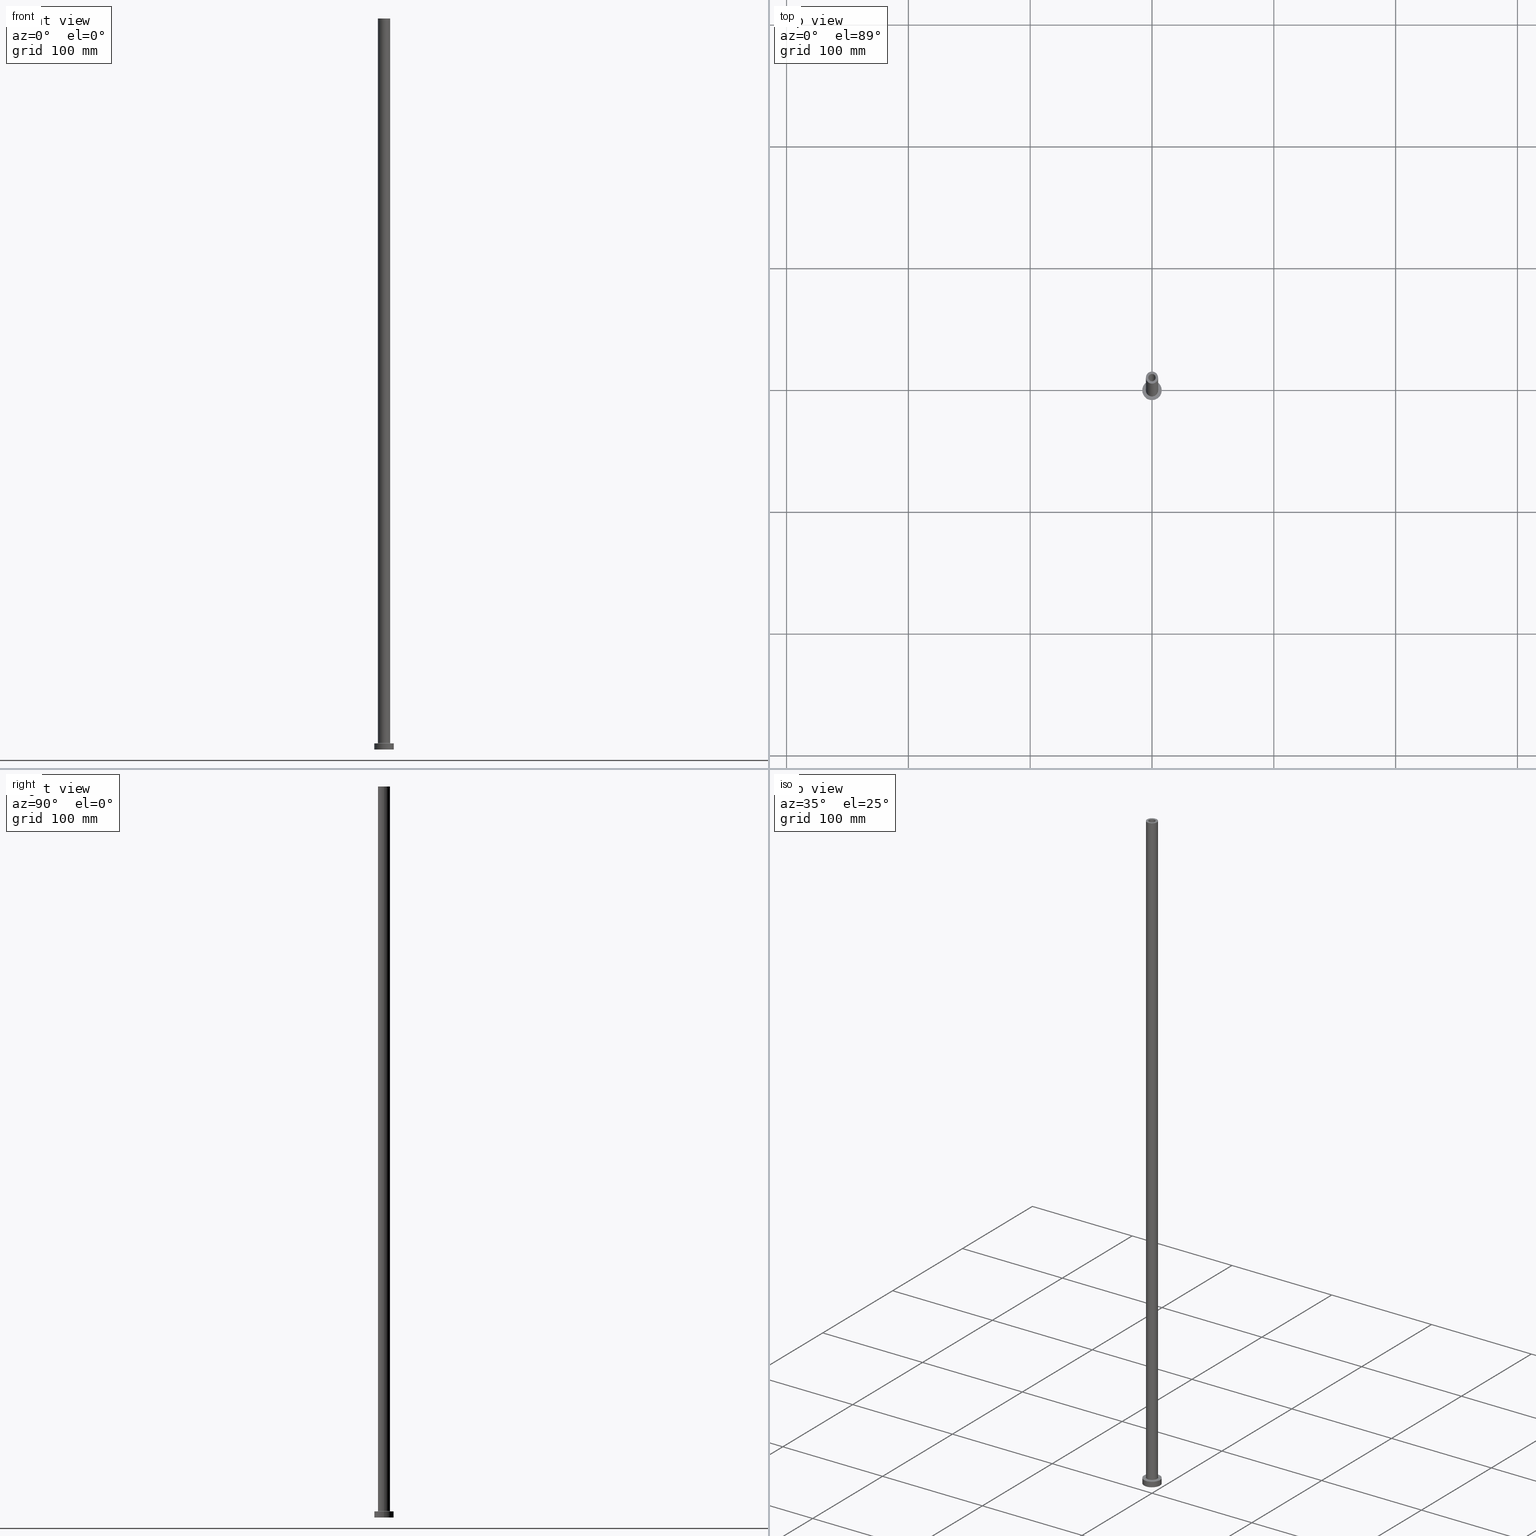
[diagram: canonical four-view strip — front | top / right | iso, engineering-drawing reading convention]
A machine part, canonical four-view strip (front | top / right | iso — engineering-drawing reading convention). The complete STEP part file that produces these views, byte-faithful:
ISO-10303-21;
HEADER;
FILE_DESCRIPTION (( 'STEP AP203' ),
    '1' );
FILE_NAME ('afd4.STEP',
    '2023-02-13T15:29:36',
    ( '' ),
    ( '' ),
    'SwSTEP 2.0',
    'SolidWorks 2019',
    '' );
FILE_SCHEMA (( 'CONFIG_CONTROL_DESIGN' ));
ENDSEC;

DATA;
#1 = ORIENTED_EDGE ( 'NONE', *, *, #393, .F. ) ;
#2 = VECTOR ( 'NONE', #62, 1000.000000000000000 ) ;
#3 = DIRECTION ( 'NONE',  ( 0.000000000000000000, 0.000000000000000000, 1.000000000000000000 ) ) ;
#4 = ORIENTED_EDGE ( 'NONE', *, *, #460, .F. ) ;
#5 = DIRECTION ( 'NONE',  ( 0.000000000000000000, 0.000000000000000000, 1.000000000000000000 ) ) ;
#6 = VERTEX_POINT ( 'NONE', #116 ) ;
#7 =( NAMED_UNIT ( * ) SI_UNIT ( $, .STERADIAN. ) SOLID_ANGLE_UNIT ( ) );
#8 = ORIENTED_EDGE ( 'NONE', *, *, #35, .T. ) ;
#9 = APPROVAL_PERSON_ORGANIZATION ( #341, #94, #408 ) ;
#10 = CIRCLE ( 'NONE', #97, 8.000000000000000000 ) ;
#11 = CARTESIAN_POINT ( 'NONE',  ( 3.000000000000000444, 3.673940397442060361E-16, 600.0000000000000000 ) ) ;
#12 = CARTESIAN_POINT ( 'NONE',  ( -8.000000000000000000, 0.000000000000000000, 0.000000000000000000 ) ) ;
#13 = COORDINATED_UNIVERSAL_TIME_OFFSET ( 1, 0, .AHEAD. ) ;
#14 = DIRECTION ( 'NONE',  ( 0.000000000000000000, -1.000000000000000000, 0.000000000000000000 ) ) ;
#15 = CYLINDRICAL_SURFACE ( 'NONE', #328, 8.000000000000000000 ) ;
#16 = AXIS2_PLACEMENT_3D ( 'NONE', #27, #250, #277 ) ;
#17 = CIRCLE ( 'NONE', #225, 3.150000000000000355 ) ;
#18 = CARTESIAN_POINT ( 'NONE',  ( -3.000000000000000444, 0.000000000000000000, 554.9999999999998863 ) ) ;
#19 = CALENDAR_DATE ( 2023, 13, 2 ) ;
#20 = ADVANCED_FACE ( 'NONE', ( #404 ), #358, .F. ) ;
#21 = CARTESIAN_POINT ( 'NONE',  ( -8.000000000000000000, 0.000000000000000000, 5.000000000000000000 ) ) ;
#22 = PERSON_AND_ORGANIZATION_ROLE ( 'creator' ) ;
#23 = DIRECTION ( 'NONE',  ( -1.000000000000000000, 0.000000000000000000, 0.000000000000000000 ) ) ;
#24 = CC_DESIGN_SECURITY_CLASSIFICATION ( #379, ( #352 ) ) ;
#25 = CIRCLE ( 'NONE', #146, 5.500000000000000000 ) ;
#26 = CARTESIAN_POINT ( 'NONE',  ( 3.000000000000000444, 3.673940397442060361E-16, 554.9999999999998863 ) ) ;
#27 = CARTESIAN_POINT ( 'NONE',  ( 0.000000000000000000, 0.000000000000000000, 0.000000000000000000 ) ) ;
#28 = EDGE_CURVE ( 'NONE', #380, #249, #313, .T. ) ;
#29 = FACE_OUTER_BOUND ( 'NONE', #252, .T. ) ;
#30 = ORIENTED_EDGE ( 'NONE', *, *, #368, .F. ) ;
#31 = FACE_OUTER_BOUND ( 'NONE', #176, .T. ) ;
#32 = CIRCLE ( 'NONE', #61, 5.500000000000000000 ) ;
#33 = EDGE_LOOP ( 'NONE', ( #294, #263 ) ) ;
#34 = DIRECTION ( 'NONE',  ( 0.000000000000000000, 0.000000000000000000, -1.000000000000000000 ) ) ;
#35 = EDGE_CURVE ( 'NONE', #114, #390, #10, .T. ) ;
#36 = ORIENTED_EDGE ( 'NONE', *, *, #113, .F. ) ;
#37 = APPLICATION_PROTOCOL_DEFINITION ( 'international standard', 'config_control_design', 1994, #320 ) ;
#38 = LINE ( 'NONE', #289, #133 ) ;
#39 = ORIENTED_EDGE ( 'NONE', *, *, #304, .T. ) ;
#40 = CIRCLE ( 'NONE', #327, 3.150000000000000355 ) ;
#41 = CC_DESIGN_DATE_AND_TIME_ASSIGNMENT ( #309, #232, ( #379 ) ) ;
#42 = DIRECTION ( 'NONE',  ( -0.000000000000000000, -0.000000000000000000, -1.000000000000000000 ) ) ;
#43 = DIRECTION ( 'NONE',  ( 0.000000000000000000, 0.000000000000000000, -1.000000000000000000 ) ) ;
#44 = DIRECTION ( 'NONE',  ( -1.000000000000000000, 0.000000000000000000, 0.000000000000000000 ) ) ;
#45 = VERTEX_POINT ( 'NONE', #12 ) ;
#46 = MECHANICAL_CONTEXT ( 'NONE', #308, 'mechanical' ) ;
#47 = VERTEX_POINT ( 'NONE', #158 ) ;
#48 = AXIS2_PLACEMENT_3D ( 'NONE', #448, #416, #53 ) ;
#49 = VECTOR ( 'NONE', #334, 1000.000000000000000 ) ;
#50 = ORIENTED_EDGE ( 'NONE', *, *, #447, .T. ) ;
#51 = ADVANCED_FACE ( 'NONE', ( #298 ), #15, .T. ) ;
#52 = CARTESIAN_POINT ( 'NONE',  ( -8.000000000000000000, 0.000000000000000000, 5.000000000000000000 ) ) ;
#53 = DIRECTION ( 'NONE',  ( 1.000000000000000000, 0.000000000000000000, 0.000000000000000000 ) ) ;
#54 = EDGE_CURVE ( 'NONE', #390, #114, #282, .T. ) ;
#55 = APPROVAL_ROLE ( '' ) ;
#56 = DIRECTION ( 'NONE',  ( 1.000000000000000000, 0.000000000000000000, 0.000000000000000000 ) ) ;
#57 = DIRECTION ( 'NONE',  ( -0.000000000000000000, -0.000000000000000000, -1.000000000000000000 ) ) ;
#58 = CARTESIAN_POINT ( 'NONE',  ( 0.000000000000000000, 0.000000000000000000, 0.000000000000000000 ) ) ;
#59 = ADVANCED_BREP_SHAPE_REPRESENTATION ( 'afd4', ( #391, #275 ), #329 ) ;
#60 = AXIS2_PLACEMENT_3D ( 'NONE', #272, #14, #301 ) ;
#61 = AXIS2_PLACEMENT_3D ( 'NONE', #381, #65, #349 ) ;
#62 = DIRECTION ( 'NONE',  ( 0.000000000000000000, 0.000000000000000000, -1.000000000000000000 ) ) ;
#63 = AXIS2_PLACEMENT_3D ( 'NONE', #345, #442, #134 ) ;
#64 = EDGE_CURVE ( 'NONE', #360, #154, #81, .T. ) ;
#65 = DIRECTION ( 'NONE',  ( -0.000000000000000000, -0.000000000000000000, -1.000000000000000000 ) ) ;
#66 = ORIENTED_EDGE ( 'NONE', *, *, #415, .T. ) ;
#67 = CARTESIAN_POINT ( 'NONE',  ( 0.000000000000000000, 0.000000000000000000, 600.0000000000000000 ) ) ;
#68 = ORIENTED_EDGE ( 'NONE', *, *, #361, .T. ) ;
#69 = EDGE_CURVE ( 'NONE', #249, #380, #321, .T. ) ;
#70 = DIRECTION ( 'NONE',  ( 1.000000000000000000, 0.000000000000000000, 0.000000000000000000 ) ) ;
#71 = ORIENTED_EDGE ( 'NONE', *, *, #447, .F. ) ;
#72 = CARTESIAN_POINT ( 'NONE',  ( -3.000000000000000444, 0.000000000000000000, 600.0000000000000000 ) ) ;
#73 = ORIENTED_EDGE ( 'NONE', *, *, #237, .F. ) ;
#74 = PERSON_AND_ORGANIZATION ( #179, #242 ) ;
#75 = VERTEX_POINT ( 'NONE', #273 ) ;
#76 = CC_DESIGN_PERSON_AND_ORGANIZATION_ASSIGNMENT ( #244, #306, ( #352 ) ) ;
#77 =( LENGTH_UNIT ( ) NAMED_UNIT ( * ) SI_UNIT ( .MILLI., .METRE. ) );
#78 = AXIS2_PLACEMENT_3D ( 'NONE', #270, #338, #209 ) ;
#79 = ORIENTED_EDGE ( 'NONE', *, *, #69, .T. ) ;
#80 = CIRCLE ( 'NONE', #281, 3.000000000000000444 ) ;
#81 = CIRCLE ( 'NONE', #399, 3.000000000000000444 ) ;
#82 = DIRECTION ( 'NONE',  ( 0.000000000000000000, 0.000000000000000000, -1.000000000000000000 ) ) ;
#83 = ORIENTED_EDGE ( 'NONE', *, *, #436, .F. ) ;
#84 = LINE ( 'NONE', #395, #49 ) ;
#85 = CARTESIAN_POINT ( 'NONE',  ( 0.000000000000000000, 0.000000000000000000, 5.000000000000000000 ) ) ;
#86 = ADVANCED_FACE ( 'NONE', ( #414 ), #206, .T. ) ;
#87 = ORIENTED_EDGE ( 'NONE', *, *, #192, .T. ) ;
#88 = CIRCLE ( 'NONE', #60, 0.5000000000000004441 ) ;
#89 = AXIS2_PLACEMENT_3D ( 'NONE', #91, #409, #236 ) ;
#90 = APPROVAL_STATUS ( 'not_yet_approved' ) ;
#91 = CARTESIAN_POINT ( 'NONE',  ( 0.000000000000000000, 0.000000000000000000, 5.000000000000000000 ) ) ;
#92 = PERSON_AND_ORGANIZATION_ROLE ( 'classification_officer' ) ;
#93 = CARTESIAN_POINT ( 'NONE',  ( 0.000000000000000000, 0.000000000000000000, 600.0000000000000000 ) ) ;
#94 = APPROVAL ( #90, 'NEUR�EN�' ) ;
#95 = PERSON_AND_ORGANIZATION ( #179, #242 ) ;
#96 = DIRECTION ( 'NONE',  ( -0.000000000000000000, -0.000000000000000000, -1.000000000000000000 ) ) ;
#97 = AXIS2_PLACEMENT_3D ( 'NONE', #85, #362, #196 ) ;
#98 = DIRECTION ( 'NONE',  ( -1.000000000000000000, 0.000000000000000000, 0.000000000000000000 ) ) ;
#99 = LINE ( 'NONE', #21, #330 ) ;
#100 = DIRECTION ( 'NONE',  ( -0.000000000000000000, -0.000000000000000000, -1.000000000000000000 ) ) ;
#101 = DIRECTION ( 'NONE',  ( 1.000000000000000000, 0.000000000000000000, -0.000000000000000000 ) ) ;
#102 = EDGE_LOOP ( 'NONE', ( #459, #68, #39, #36 ) ) ;
#103 = PRODUCT ( 'afd4', 'afd4', '', ( #46 ) ) ;
#104 = CARTESIAN_POINT ( 'NONE',  ( 0.000000000000000000, 0.000000000000000000, 554.9999999999998863 ) ) ;
#105 = ADVANCED_FACE ( 'NONE', ( #302 ), #406, .F. ) ;
#106 = CARTESIAN_POINT ( 'NONE',  ( 8.000000000000000000, 9.797174393178825657E-16, 5.000000000000000000 ) ) ;
#107 = DIRECTION ( 'NONE',  ( 0.000000000000000000, 0.000000000000000000, 1.000000000000000000 ) ) ;
#108 = LOCAL_TIME ( 16, 29, 36.00000000000000000, #197 ) ;
#109 = AXIS2_PLACEMENT_3D ( 'NONE', #119, #264, #403 ) ;
#110 = ORIENTED_EDGE ( 'NONE', *, *, #237, .T. ) ;
#111 = DIRECTION ( 'NONE',  ( 1.000000000000000000, 0.000000000000000000, 0.000000000000000000 ) ) ;
#112 = ORIENTED_EDGE ( 'NONE', *, *, #436, .T. ) ;
#113 = EDGE_CURVE ( 'NONE', #114, #45, #99, .T. ) ;
#114 = VERTEX_POINT ( 'NONE', #52 ) ;
#115 = DIRECTION ( 'NONE',  ( -0.000000000000000000, -0.000000000000000000, -1.000000000000000000 ) ) ;
#116 = CARTESIAN_POINT ( 'NONE',  ( -5.500000000000000000, 6.735557395310442023E-16, 4.999999999999975131 ) ) ;
#117 = AXIS2_PLACEMENT_3D ( 'NONE', #162, #446, #56 ) ;
#118 = CARTESIAN_POINT ( 'NONE',  ( 0.000000000000000000, 0.000000000000000000, 0.000000000000000000 ) ) ;
#119 = CARTESIAN_POINT ( 'NONE',  ( 0.000000000000000000, 0.000000000000000000, 5.499999999999949374 ) ) ;
#120 = ADVANCED_FACE ( 'NONE', ( #128 ), #319, .F. ) ;
#121 = FACE_BOUND ( 'NONE', #153, .T. ) ;
#122 = ORIENTED_EDGE ( 'NONE', *, *, #156, .F. ) ;
#123 = SHAPE_DEFINITION_REPRESENTATION ( #342, #59 ) ;
#124 = CARTESIAN_POINT ( 'NONE',  ( 5.000000000000000000, 6.123233995736766282E-16, 600.0000000000000000 ) ) ;
#125 = AXIS2_PLACEMENT_3D ( 'NONE', #93, #276, #369 ) ;
#126 = LOCAL_TIME ( 16, 29, 36.00000000000000000, #150 ) ;
#127 = APPROVAL ( #445, 'NEUR�EN�' ) ;
#128 = FACE_OUTER_BOUND ( 'NONE', #219, .T. ) ;
#129 = DATE_AND_TIME ( #271, #126 ) ;
#130 = FACE_OUTER_BOUND ( 'NONE', #288, .T. ) ;
#131 = COORDINATED_UNIVERSAL_TIME_OFFSET ( 1, 0, .AHEAD. ) ;
#132 = DIRECTION ( 'NONE',  ( 0.000000000000000000, 0.000000000000000000, -1.000000000000000000 ) ) ;
#133 = VECTOR ( 'NONE', #389, 1000.000000000000000 ) ;
#134 = DIRECTION ( 'NONE',  ( 1.000000000000000000, 0.000000000000000000, 0.000000000000000000 ) ) ;
#135 = CC_DESIGN_PERSON_AND_ORGANIZATION_ASSIGNMENT ( #95, #92, ( #379 ) ) ;
#136 = DIRECTION ( 'NONE',  ( -1.000000000000000000, 0.000000000000000000, 0.000000000000000000 ) ) ;
#137 = ORIENTED_EDGE ( 'NONE', *, *, #186, .T. ) ;
#138 = CARTESIAN_POINT ( 'NONE',  ( -3.150000000000000355, 0.000000000000000000, 0.000000000000000000 ) ) ;
#139 = CARTESIAN_POINT ( 'NONE',  ( 8.000000000000000000, 9.797174393178825657E-16, 5.000000000000000000 ) ) ;
#140 = EDGE_CURVE ( 'NONE', #425, #193, #339, .T. ) ;
#141 = ORIENTED_EDGE ( 'NONE', *, *, #54, .T. ) ;
#142 = DIRECTION ( 'NONE',  ( 0.000000000000000000, 0.000000000000000000, 1.000000000000000000 ) ) ;
#143 = VERTEX_POINT ( 'NONE', #245 ) ;
#144 = DIRECTION ( 'NONE',  ( 0.000000000000000000, 0.000000000000000000, 1.000000000000000000 ) ) ;
#145 = ORIENTED_EDGE ( 'NONE', *, *, #261, .F. ) ;
#146 = AXIS2_PLACEMENT_3D ( 'NONE', #315, #175, #346 ) ;
#147 = CYLINDRICAL_SURFACE ( 'NONE', #455, 5.000000000000000000 ) ;
#148 = ORIENTED_EDGE ( 'NONE', *, *, #304, .F. ) ;
#149 = ADVANCED_FACE ( 'NONE', ( #160 ), #310, .T. ) ;
#150 = COORDINATED_UNIVERSAL_TIME_OFFSET ( 1, 0, .AHEAD. ) ;
#151 = ORIENTED_EDGE ( 'NONE', *, *, #177, .T. ) ;
#152 = CARTESIAN_POINT ( 'NONE',  ( 3.150000000000000355, 3.857637417314163182E-16, 0.000000000000000000 ) ) ;
#153 = EDGE_LOOP ( 'NONE', ( #332, #145 ) ) ;
#154 = VERTEX_POINT ( 'NONE', #18 ) ;
#155 = APPROVAL_PERSON_ORGANIZATION ( #74, #299, #223 ) ;
#156 = EDGE_CURVE ( 'NONE', #154, #360, #371, .T. ) ;
#157 = CARTESIAN_POINT ( 'NONE',  ( 0.000000000000000000, 0.000000000000000000, 0.000000000000000000 ) ) ;
#158 = CARTESIAN_POINT ( 'NONE',  ( -3.150000000000000355, 0.000000000000000000, 554.9999999999998863 ) ) ;
#159 = SECURITY_CLASSIFICATION_LEVEL ( 'unclassified' ) ;
#160 = FACE_OUTER_BOUND ( 'NONE', #366, .T. ) ;
#161 = CC_DESIGN_PERSON_AND_ORGANIZATION_ASSIGNMENT ( #167, #303, ( #323 ) ) ;
#162 = CARTESIAN_POINT ( 'NONE',  ( 0.000000000000000000, 0.000000000000000000, 5.499999999999949374 ) ) ;
#163 = AXIS2_PLACEMENT_3D ( 'NONE', #452, #454, #325 ) ;
#164 = AXIS2_PLACEMENT_3D ( 'NONE', #234, #43, #435 ) ;
#165 = COORDINATED_UNIVERSAL_TIME_OFFSET ( 1, 0, .AHEAD. ) ;
#166 = CYLINDRICAL_SURFACE ( 'NONE', #226, 3.000000000000000444 ) ;
#167 = PERSON_AND_ORGANIZATION ( #179, #242 ) ;
#168 = CARTESIAN_POINT ( 'NONE',  ( 0.000000000000000000, 0.000000000000000000, 0.000000000000000000 ) ) ;
#169 = CARTESIAN_POINT ( 'NONE',  ( 0.000000000000000000, 0.000000000000000000, 5.000000000000000000 ) ) ;
#170 = AXIS2_PLACEMENT_3D ( 'NONE', #194, #228, #432 ) ;
#171 = CC_DESIGN_PERSON_AND_ORGANIZATION_ASSIGNMENT ( #257, #392, ( #103 ) ) ;
#172 = CIRCLE ( 'NONE', #233, 8.000000000000000000 ) ;
#173 = AXIS2_PLACEMENT_3D ( 'NONE', #418, #144, #101 ) ;
#174 = CYLINDRICAL_SURFACE ( 'NONE', #203, 3.000000000000000444 ) ;
#175 = DIRECTION ( 'NONE',  ( -0.000000000000000000, -0.000000000000000000, -1.000000000000000000 ) ) ;
#176 = EDGE_LOOP ( 'NONE', ( #231, #191, #433, #350 ) ) ;
#177 = EDGE_CURVE ( 'NONE', #47, #333, #440, .T. ) ;
#178 = LINE ( 'NONE', #251, #2 ) ;
#179 = PERSON ( 'NEUR�EN�', 'NEUR�EN�', 'NEUR�EN�', ('NEUR�EN�'), ('NEUR�EN�'), ('NEUR�EN�') ) ;
#180 = ORIENTED_EDGE ( 'NONE', *, *, #383, .F. ) ;
#181 = DIRECTION ( 'NONE',  ( -1.000000000000000000, 0.000000000000000000, 0.000000000000000000 ) ) ;
#182 = ORIENTED_EDGE ( 'NONE', *, *, #140, .F. ) ;
#183 = CARTESIAN_POINT ( 'NONE',  ( 0.000000000000000000, 0.000000000000000000, 554.9999999999998863 ) ) ;
#184 = ORIENTED_EDGE ( 'NONE', *, *, #140, .T. ) ;
#185 = ORIENTED_EDGE ( 'NONE', *, *, #356, .T. ) ;
#186 = EDGE_CURVE ( 'NONE', #45, #75, #311, .T. ) ;
#187 = DIRECTION ( 'NONE',  ( 1.000000000000000000, 0.000000000000000000, 0.000000000000000000 ) ) ;
#188 = APPROVAL_PERSON_ORGANIZATION ( #370, #127, #55 ) ;
#189 = ORIENTED_EDGE ( 'NONE', *, *, #441, .F. ) ;
#190 = CARTESIAN_POINT ( 'NONE',  ( -3.000000000000000444, 0.000000000000000000, 600.0000000000000000 ) ) ;
#191 = ORIENTED_EDGE ( 'NONE', *, *, #368, .T. ) ;
#192 = EDGE_CURVE ( 'NONE', #380, #143, #88, .T. ) ;
#193 = VERTEX_POINT ( 'NONE', #124 ) ;
#194 = CARTESIAN_POINT ( 'NONE',  ( 0.000000000000000000, 0.000000000000000000, 600.0000000000000000 ) ) ;
#195 = AXIS2_PLACEMENT_3D ( 'NONE', #67, #216, #70 ) ;
#196 = DIRECTION ( 'NONE',  ( 1.000000000000000000, 0.000000000000000000, 0.000000000000000000 ) ) ;
#197 = COORDINATED_UNIVERSAL_TIME_OFFSET ( 1, 0, .AHEAD. ) ;
#198 = UNCERTAINTY_MEASURE_WITH_UNIT (LENGTH_MEASURE( 1.000000000000000082E-05 ), #77, 'distance_accuracy_value', 'NONE');
#199 = CARTESIAN_POINT ( 'NONE',  ( 0.000000000000000000, 0.000000000000000000, 554.9999999999998863 ) ) ;
#200 = ADVANCED_FACE ( 'NONE', ( #267 ), #166, .F. ) ;
#201 = DATE_TIME_ROLE ( 'creation_date' ) ;
#202 = DIRECTION ( 'NONE',  ( 0.000000000000000000, 0.000000000000000000, 1.000000000000000000 ) ) ;
#203 = AXIS2_PLACEMENT_3D ( 'NONE', #417, #34, #136 ) ;
#204 = VECTOR ( 'NONE', #82, 1000.000000000000000 ) ;
#205 = CALENDAR_DATE ( 2023, 13, 2 ) ;
#206 = CYLINDRICAL_SURFACE ( 'NONE', #212, 8.000000000000000000 ) ;
#207 = APPROVAL_DATE_TIME ( #365, #94 ) ;
#208 = ADVANCED_FACE ( 'NONE', ( #444, #130 ), #307, .T. ) ;
#209 = DIRECTION ( 'NONE',  ( 1.000000000000000000, 0.000000000000000000, 0.000000000000000000 ) ) ;
#210 = CARTESIAN_POINT ( 'NONE',  ( 0.000000000000000000, 0.000000000000000000, 0.000000000000000000 ) ) ;
#211 = VECTOR ( 'NONE', #285, 1000.000000000000000 ) ;
#212 = AXIS2_PLACEMENT_3D ( 'NONE', #340, #57, #98 ) ;
#213 = CARTESIAN_POINT ( 'NONE',  ( 3.150000000000000355, 3.857637417314163182E-16, 554.9999999999998863 ) ) ;
#214 = ORIENTED_EDGE ( 'NONE', *, *, #192, .F. ) ;
#215 = EDGE_CURVE ( 'NONE', #260, #47, #40, .T. ) ;
#216 = DIRECTION ( 'NONE',  ( 0.000000000000000000, 0.000000000000000000, 1.000000000000000000 ) ) ;
#217 = ORIENTED_EDGE ( 'NONE', *, *, #28, .F. ) ;
#218 = DIRECTION ( 'NONE',  ( 0.000000000000000000, 0.000000000000000000, 1.000000000000000000 ) ) ;
#219 = EDGE_LOOP ( 'NONE', ( #401, #185, #290, #214 ) ) ;
#220 = CLOSED_SHELL ( 'NONE', ( #278, #291, #120, #420, #51, #86, #208, #429, #149, #375, #105, #20, #286, #200 ) ) ;
#221 = DIRECTION ( 'NONE',  ( 1.000000000000000000, 0.000000000000000000, 0.000000000000000000 ) ) ;
#222 = CC_DESIGN_DATE_AND_TIME_ASSIGNMENT ( #443, #201, ( #323 ) ) ;
#223 = APPROVAL_ROLE ( '' ) ;
#224 = ORIENTED_EDGE ( 'NONE', *, *, #243, .F. ) ;
#225 = AXIS2_PLACEMENT_3D ( 'NONE', #449, #422, #221 ) ;
#226 = AXIS2_PLACEMENT_3D ( 'NONE', #305, #132, #407 ) ;
#227 = EDGE_LOOP ( 'NONE', ( #71, #438, #112, #355 ) ) ;
#228 = DIRECTION ( 'NONE',  ( 0.000000000000000000, 0.000000000000000000, 1.000000000000000000 ) ) ;
#229 = ORIENTED_EDGE ( 'NONE', *, *, #441, .T. ) ;
#230 = FACE_OUTER_BOUND ( 'NONE', #439, .T. ) ;
#231 = ORIENTED_EDGE ( 'NONE', *, *, #243, .T. ) ;
#232 = DATE_TIME_ROLE ( 'classification_date' ) ;
#233 = AXIS2_PLACEMENT_3D ( 'NONE', #210, #142, #317 ) ;
#234 = CARTESIAN_POINT ( 'NONE',  ( 0.000000000000000000, 0.000000000000000000, 563.9095454429503889 ) ) ;
#235 = CC_DESIGN_APPROVAL ( #94, ( #352 ) ) ;
#236 = DIRECTION ( 'NONE',  ( 1.000000000000000000, 0.000000000000000000, 0.000000000000000000 ) ) ;
#237 = EDGE_CURVE ( 'NONE', #193, #425, #428, .T. ) ;
#238 = CALENDAR_DATE ( 2023, 13, 2 ) ;
#239 = DIRECTION ( 'NONE',  ( -0.000000000000000000, -0.000000000000000000, -1.000000000000000000 ) ) ;
#240 = CALENDAR_DATE ( 2023, 13, 2 ) ;
#241 = CARTESIAN_POINT ( 'NONE',  ( 0.000000000000000000, 0.000000000000000000, 600.0000000000000000 ) ) ;
#242 = ORGANIZATION ( 'NEUR�EN�', 'NEUR�EN�', '' ) ;
#243 = EDGE_CURVE ( 'NONE', #47, #260, #17, .T. ) ;
#244 = PERSON_AND_ORGANIZATION ( #179, #242 ) ;
#245 = CARTESIAN_POINT ( 'NONE',  ( 5.500000000000000000, 0.000000000000000000, 4.999999999999975131 ) ) ;
#246 = DIRECTION ( 'NONE',  ( 0.000000000000000000, 0.000000000000000000, -1.000000000000000000 ) ) ;
#247 = ORIENTED_EDGE ( 'NONE', *, *, #186, .F. ) ;
#248 = CARTESIAN_POINT ( 'NONE',  ( 5.000000000000000000, 6.123233995736766282E-16, 5.499999999999949374 ) ) ;
#249 = VERTEX_POINT ( 'NONE', #427 ) ;
#250 = DIRECTION ( 'NONE',  ( -0.000000000000000000, -0.000000000000000000, -1.000000000000000000 ) ) ;
#251 = CARTESIAN_POINT ( 'NONE',  ( 3.150000000000000355, 3.857637417314163182E-16, 563.9095454429503889 ) ) ;
#252 = EDGE_LOOP ( 'NONE', ( #184, #110 ) ) ;
#253 = CIRCLE ( 'NONE', #170, 3.000000000000000444 ) ;
#254 = EDGE_CURVE ( 'NONE', #333, #396, #364, .T. ) ;
#255 = CYLINDRICAL_SURFACE ( 'NONE', #274, 3.150000000000000355 ) ;
#256 = ORIENTED_EDGE ( 'NONE', *, *, #64, .T. ) ;
#257 = PERSON_AND_ORGANIZATION ( #179, #242 ) ;
#258 = ORIENTED_EDGE ( 'NONE', *, *, #254, .T. ) ;
#259 = DIRECTION ( 'NONE',  ( 1.000000000000000000, 0.000000000000000000, -0.000000000000000000 ) ) ;
#260 = VERTEX_POINT ( 'NONE', #213 ) ;
#261 = EDGE_CURVE ( 'NONE', #396, #333, #378, .T. ) ;
#262 = LOCAL_TIME ( 16, 29, 36.00000000000000000, #131 ) ;
#263 = ORIENTED_EDGE ( 'NONE', *, *, #383, .T. ) ;
#264 = DIRECTION ( 'NONE',  ( 0.000000000000000000, 0.000000000000000000, 1.000000000000000000 ) ) ;
#265 = ORIENTED_EDGE ( 'NONE', *, *, #28, .T. ) ;
#266 = AXIS2_PLACEMENT_3D ( 'NONE', #241, #96, #23 ) ;
#267 = FACE_OUTER_BOUND ( 'NONE', #227, .T. ) ;
#268 = LOCAL_TIME ( 16, 29, 36.00000000000000000, #13 ) ;
#269 = DATE_AND_TIME ( #205, #108 ) ;
#270 = CARTESIAN_POINT ( 'NONE',  ( 0.000000000000000000, 0.000000000000000000, 5.499999999999949374 ) ) ;
#271 = CALENDAR_DATE ( 2023, 13, 2 ) ;
#272 = CARTESIAN_POINT ( 'NONE',  ( 5.500000000000000000, 0.000000000000000000, 5.499999999999949374 ) ) ;
#273 = CARTESIAN_POINT ( 'NONE',  ( 8.000000000000000000, 9.797174393178825657E-16, 0.000000000000000000 ) ) ;
#274 = AXIS2_PLACEMENT_3D ( 'NONE', #377, #246, #181 ) ;
#275 = AXIS2_PLACEMENT_3D ( 'NONE', #118, #3, #111 ) ;
#276 = DIRECTION ( 'NONE',  ( 0.000000000000000000, 0.000000000000000000, 1.000000000000000000 ) ) ;
#277 = DIRECTION ( 'NONE',  ( 1.000000000000000000, 0.000000000000000000, 0.000000000000000000 ) ) ;
#278 = ADVANCED_FACE ( 'NONE', ( #322 ), #174, .F. ) ;
#279 = PLANE ( 'NONE',  #453 ) ;
#280 = ORIENTED_EDGE ( 'NONE', *, *, #215, .T. ) ;
#281 = AXIS2_PLACEMENT_3D ( 'NONE', #402, #5, #187 ) ;
#282 = CIRCLE ( 'NONE', #89, 8.000000000000000000 ) ;
#283 = DIRECTION ( 'NONE',  ( 0.000000000000000000, 0.000000000000000000, 1.000000000000000000 ) ) ;
#284 = EDGE_LOOP ( 'NONE', ( #316, #292, #385, #137 ) ) ;
#285 = DIRECTION ( 'NONE',  ( -0.000000000000000000, -0.000000000000000000, -1.000000000000000000 ) ) ;
#286 = ADVANCED_FACE ( 'NONE', ( #456, #384 ), #279, .F. ) ;
#287 = CARTESIAN_POINT ( 'NONE',  ( 0.000000000000000000, 0.000000000000000000, 5.000000000000000000 ) ) ;
#288 = EDGE_LOOP ( 'NONE', ( #8, #141 ) ) ;
#289 = CARTESIAN_POINT ( 'NONE',  ( 3.000000000000000444, 3.673940397442060361E-16, 600.0000000000000000 ) ) ;
#290 = ORIENTED_EDGE ( 'NONE', *, *, #336, .F. ) ;
#291 = ADVANCED_FACE ( 'NONE', ( #31 ), #255, .F. ) ;
#292 = ORIENTED_EDGE ( 'NONE', *, *, #35, .F. ) ;
#293 = DIRECTION ( 'NONE',  ( 0.000000000000000000, 0.000000000000000000, 1.000000000000000000 ) ) ;
#294 = ORIENTED_EDGE ( 'NONE', *, *, #336, .T. ) ;
#295 = CARTESIAN_POINT ( 'NONE',  ( -5.000000000000000000, 0.000000000000000000, 600.0000000000000000 ) ) ;
#296 = EDGE_LOOP ( 'NONE', ( #224, #326 ) ) ;
#297 = CARTESIAN_POINT ( 'NONE',  ( 5.000000000000000000, 6.123233995736766282E-16, 600.0000000000000000 ) ) ;
#298 = FACE_OUTER_BOUND ( 'NONE', #102, .T. ) ;
#299 = APPROVAL ( #357, 'NEUR�EN�' ) ;
#300 = DESIGN_CONTEXT ( 'detailed design', #320, 'design' ) ;
#301 = DIRECTION ( 'NONE',  ( 0.000000000000000000, 0.000000000000000000, -1.000000000000000000 ) ) ;
#302 = FACE_OUTER_BOUND ( 'NONE', #324, .T. ) ;
#303 = PERSON_AND_ORGANIZATION_ROLE ( 'creator' ) ;
#304 = EDGE_CURVE ( 'NONE', #75, #45, #172, .T. ) ;
#305 = CARTESIAN_POINT ( 'NONE',  ( 0.000000000000000000, 0.000000000000000000, 600.0000000000000000 ) ) ;
#306 = PERSON_AND_ORGANIZATION_ROLE ( 'design_supplier' ) ;
#307 = PLANE ( 'NONE',  #388 ) ;
#308 = APPLICATION_CONTEXT ( 'configuration controlled 3d designs of mechanical parts and assemblies' ) ;
#309 = DATE_AND_TIME ( #19, #262 ) ;
#310 = CYLINDRICAL_SURFACE ( 'NONE', #266, 5.000000000000000000 ) ;
#311 = CIRCLE ( 'NONE', #419, 8.000000000000000000 ) ;
#312 = LOCAL_TIME ( 16, 29, 36.00000000000000000, #165 ) ;
#313 = CIRCLE ( 'NONE', #109, 5.000000000000000000 ) ;
#314 = LINE ( 'NONE', #106, #211 ) ;
#315 = CARTESIAN_POINT ( 'NONE',  ( 0.000000000000000000, 0.000000000000000000, 5.000000000000000000 ) ) ;
#316 = ORIENTED_EDGE ( 'NONE', *, *, #361, .F. ) ;
#317 = DIRECTION ( 'NONE',  ( 1.000000000000000000, 0.000000000000000000, 0.000000000000000000 ) ) ;
#318 = EDGE_LOOP ( 'NONE', ( #73, #387, #265, #382 ) ) ;
#319 = TOROIDAL_SURFACE ( 'NONE', #78, 5.500000000000000000, 0.5000000000000000000 ) ;
#320 = APPLICATION_CONTEXT ( 'configuration controlled 3d designs of mechanical parts and assemblies' ) ;
#321 = CIRCLE ( 'NONE', #117, 5.000000000000000000 ) ;
#322 = FACE_OUTER_BOUND ( 'NONE', #331, .T. ) ;
#323 = PRODUCT_DEFINITION ( 'NEZN�M�', '', #352, #300 ) ;
#324 = EDGE_LOOP ( 'NONE', ( #450, #217, #87, #180 ) ) ;
#325 = DIRECTION ( 'NONE',  ( -1.000000000000000000, 1.224646799147351482E-16, 0.000000000000000000 ) ) ;
#326 = ORIENTED_EDGE ( 'NONE', *, *, #215, .F. ) ;
#327 = AXIS2_PLACEMENT_3D ( 'NONE', #104, #283, #353 ) ;
#328 = AXIS2_PLACEMENT_3D ( 'NONE', #169, #239, #411 ) ;
#329 =( GEOMETRIC_REPRESENTATION_CONTEXT ( 3 ) GLOBAL_UNCERTAINTY_ASSIGNED_CONTEXT ( ( #198 ) ) GLOBAL_UNIT_ASSIGNED_CONTEXT ( ( #77, #354, #7 ) ) REPRESENTATION_CONTEXT ( 'NONE', 'WORKASPACE' ) );
#330 = VECTOR ( 'NONE', #373, 1000.000000000000000 ) ;
#331 = EDGE_LOOP ( 'NONE', ( #229, #50, #122, #83 ) ) ;
#332 = ORIENTED_EDGE ( 'NONE', *, *, #254, .F. ) ;
#333 = VERTEX_POINT ( 'NONE', #138 ) ;
#334 = DIRECTION ( 'NONE',  ( -0.000000000000000000, -0.000000000000000000, -1.000000000000000000 ) ) ;
#335 = EDGE_LOOP ( 'NONE', ( #189, #1 ) ) ;
#336 = EDGE_CURVE ( 'NONE', #143, #6, #25, .T. ) ;
#337 = DIRECTION ( 'NONE',  ( 0.000000000000000000, 0.000000000000000000, -1.000000000000000000 ) ) ;
#338 = DIRECTION ( 'NONE',  ( 0.000000000000000000, 0.000000000000000000, 1.000000000000000000 ) ) ;
#339 = CIRCLE ( 'NONE', #125, 5.000000000000000000 ) ;
#340 = CARTESIAN_POINT ( 'NONE',  ( 0.000000000000000000, 0.000000000000000000, 5.000000000000000000 ) ) ;
#341 = PERSON_AND_ORGANIZATION ( #179, #242 ) ;
#342 = PRODUCT_DEFINITION_SHAPE ( 'NONE', 'NONE',  #323 ) ;
#343 = DIRECTION ( 'NONE',  ( 1.000000000000000000, 0.000000000000000000, 0.000000000000000000 ) ) ;
#344 = APPROVAL_DATE_TIME ( #129, #299 ) ;
#345 = CARTESIAN_POINT ( 'NONE',  ( 0.000000000000000000, 0.000000000000000000, 5.499999999999949374 ) ) ;
#346 = DIRECTION ( 'NONE',  ( 1.000000000000000000, 0.000000000000000000, 0.000000000000000000 ) ) ;
#347 = PRODUCT_RELATED_PRODUCT_CATEGORY ( 'detail', '', ( #103 ) ) ;
#348 = DIRECTION ( 'NONE',  ( 1.000000000000000000, 0.000000000000000000, 0.000000000000000000 ) ) ;
#349 = DIRECTION ( 'NONE',  ( 1.000000000000000000, 0.000000000000000000, 0.000000000000000000 ) ) ;
#350 = ORIENTED_EDGE ( 'NONE', *, *, #177, .F. ) ;
#351 = DIRECTION ( 'NONE',  ( 1.000000000000000000, 0.000000000000000000, -0.000000000000000000 ) ) ;
#352 = PRODUCT_DEFINITION_FORMATION_WITH_SPECIFIED_SOURCE ( 'LIBOVOLN�', '', #103, .NOT_KNOWN. ) ;
#353 = DIRECTION ( 'NONE',  ( 1.000000000000000000, 0.000000000000000000, 0.000000000000000000 ) ) ;
#354 =( NAMED_UNIT ( * ) PLANE_ANGLE_UNIT ( ) SI_UNIT ( $, .RADIAN. ) );
#355 = ORIENTED_EDGE ( 'NONE', *, *, #64, .F. ) ;
#356 = EDGE_CURVE ( 'NONE', #249, #6, #405, .T. ) ;
#357 = APPROVAL_STATUS ( 'not_yet_approved' ) ;
#358 = CYLINDRICAL_SURFACE ( 'NONE', #164, 3.150000000000000355 ) ;
#359 = PLANE ( 'NONE',  #398 ) ;
#360 = VERTEX_POINT ( 'NONE', #26 ) ;
#361 = EDGE_CURVE ( 'NONE', #390, #75, #314, .T. ) ;
#362 = DIRECTION ( 'NONE',  ( 0.000000000000000000, 0.000000000000000000, 1.000000000000000000 ) ) ;
#363 = CC_DESIGN_APPROVAL ( #299, ( #323 ) ) ;
#364 = CIRCLE ( 'NONE', #16, 3.150000000000000355 ) ;
#365 = DATE_AND_TIME ( #240, #268 ) ;
#366 = EDGE_LOOP ( 'NONE', ( #4, #182, #66, #79 ) ) ;
#367 = DIRECTION ( 'NONE',  ( 1.000000000000000000, 0.000000000000000000, 0.000000000000000000 ) ) ;
#368 = EDGE_CURVE ( 'NONE', #260, #396, #178, .T. ) ;
#369 = DIRECTION ( 'NONE',  ( 1.000000000000000000, 0.000000000000000000, 0.000000000000000000 ) ) ;
#370 = PERSON_AND_ORGANIZATION ( #179, #242 ) ;
#371 = CIRCLE ( 'NONE', #48, 3.000000000000000444 ) ;
#372 = VECTOR ( 'NONE', #115, 1000.000000000000000 ) ;
#373 = DIRECTION ( 'NONE',  ( -0.000000000000000000, -0.000000000000000000, -1.000000000000000000 ) ) ;
#374 = CARTESIAN_POINT ( 'NONE',  ( -3.150000000000000355, 0.000000000000000000, 563.9095454429503889 ) ) ;
#375 = ADVANCED_FACE ( 'NONE', ( #458, #29 ), #424, .T. ) ;
#376 = DIRECTION ( 'NONE',  ( 0.000000000000000000, 0.000000000000000000, 1.000000000000000000 ) ) ;
#377 = CARTESIAN_POINT ( 'NONE',  ( 0.000000000000000000, 0.000000000000000000, 563.9095454429503889 ) ) ;
#378 = CIRCLE ( 'NONE', #397, 3.150000000000000355 ) ;
#379 = SECURITY_CLASSIFICATION ( '', '', #159 ) ;
#380 = VERTEX_POINT ( 'NONE', #248 ) ;
#381 = CARTESIAN_POINT ( 'NONE',  ( 0.000000000000000000, 0.000000000000000000, 5.000000000000000000 ) ) ;
#382 = ORIENTED_EDGE ( 'NONE', *, *, #415, .F. ) ;
#383 = EDGE_CURVE ( 'NONE', #6, #143, #32, .T. ) ;
#384 = FACE_OUTER_BOUND ( 'NONE', #296, .T. ) ;
#385 = ORIENTED_EDGE ( 'NONE', *, *, #113, .T. ) ;
#386 = DIRECTION ( 'NONE',  ( 1.000000000000000000, 0.000000000000000000, -0.000000000000000000 ) ) ;
#387 = ORIENTED_EDGE ( 'NONE', *, *, #460, .T. ) ;
#388 = AXIS2_PLACEMENT_3D ( 'NONE', #287, #107, #386 ) ;
#389 = DIRECTION ( 'NONE',  ( 0.000000000000000000, 0.000000000000000000, -1.000000000000000000 ) ) ;
#390 = VERTEX_POINT ( 'NONE', #139 ) ;
#391 = MANIFOLD_SOLID_BREP ( 'Odebrat vysunut�m4', #220 ) ;
#392 = PERSON_AND_ORGANIZATION_ROLE ( 'design_owner' ) ;
#393 = EDGE_CURVE ( 'NONE', #421, #457, #80, .T. ) ;
#394 = EDGE_LOOP ( 'NONE', ( #431, #256 ) ) ;
#395 = CARTESIAN_POINT ( 'NONE',  ( -5.000000000000000000, 0.000000000000000000, 600.0000000000000000 ) ) ;
#396 = VERTEX_POINT ( 'NONE', #152 ) ;
#397 = AXIS2_PLACEMENT_3D ( 'NONE', #58, #100, #348 ) ;
#398 = AXIS2_PLACEMENT_3D ( 'NONE', #157, #293, #259 ) ;
#399 = AXIS2_PLACEMENT_3D ( 'NONE', #199, #376, #367 ) ;
#400 = FACE_OUTER_BOUND ( 'NONE', #318, .T. ) ;
#401 = ORIENTED_EDGE ( 'NONE', *, *, #69, .F. ) ;
#402 = CARTESIAN_POINT ( 'NONE',  ( 0.000000000000000000, 0.000000000000000000, 600.0000000000000000 ) ) ;
#403 = DIRECTION ( 'NONE',  ( 1.000000000000000000, 0.000000000000000000, 0.000000000000000000 ) ) ;
#404 = FACE_OUTER_BOUND ( 'NONE', #423, .T. ) ;
#405 = CIRCLE ( 'NONE', #163, 0.5000000000000004441 ) ;
#406 = TOROIDAL_SURFACE ( 'NONE', #63, 5.500000000000000000, 0.5000000000000000000 ) ;
#407 = DIRECTION ( 'NONE',  ( -1.000000000000000000, 0.000000000000000000, 0.000000000000000000 ) ) ;
#408 = APPROVAL_ROLE ( '' ) ;
#409 = DIRECTION ( 'NONE',  ( 0.000000000000000000, 0.000000000000000000, 1.000000000000000000 ) ) ;
#410 = PERSON_AND_ORGANIZATION ( #179, #242 ) ;
#411 = DIRECTION ( 'NONE',  ( -1.000000000000000000, 0.000000000000000000, 0.000000000000000000 ) ) ;
#412 = APPROVAL_DATE_TIME ( #269, #127 ) ;
#413 = VECTOR ( 'NONE', #337, 1000.000000000000000 ) ;
#414 = FACE_OUTER_BOUND ( 'NONE', #284, .T. ) ;
#415 = EDGE_CURVE ( 'NONE', #425, #249, #84, .T. ) ;
#416 = DIRECTION ( 'NONE',  ( 0.000000000000000000, 0.000000000000000000, 1.000000000000000000 ) ) ;
#417 = CARTESIAN_POINT ( 'NONE',  ( 0.000000000000000000, 0.000000000000000000, 600.0000000000000000 ) ) ;
#418 = CARTESIAN_POINT ( 'NONE',  ( 0.000000000000000000, 0.000000000000000000, 600.0000000000000000 ) ) ;
#419 = AXIS2_PLACEMENT_3D ( 'NONE', #168, #202, #343 ) ;
#420 = ADVANCED_FACE ( 'NONE', ( #400 ), #147, .T. ) ;
#421 = VERTEX_POINT ( 'NONE', #11 ) ;
#422 = DIRECTION ( 'NONE',  ( 0.000000000000000000, 0.000000000000000000, 1.000000000000000000 ) ) ;
#423 = EDGE_LOOP ( 'NONE', ( #30, #280, #151, #258 ) ) ;
#424 = PLANE ( 'NONE',  #173 ) ;
#425 = VERTEX_POINT ( 'NONE', #295 ) ;
#426 = CC_DESIGN_APPROVAL ( #127, ( #379 ) ) ;
#427 = CARTESIAN_POINT ( 'NONE',  ( -5.000000000000000000, 0.000000000000000000, 5.499999999999949374 ) ) ;
#428 = CIRCLE ( 'NONE', #195, 5.000000000000000000 ) ;
#429 = ADVANCED_FACE ( 'NONE', ( #121, #230 ), #359, .F. ) ;
#430 = LINE ( 'NONE', #297, #372 ) ;
#431 = ORIENTED_EDGE ( 'NONE', *, *, #156, .T. ) ;
#432 = DIRECTION ( 'NONE',  ( 1.000000000000000000, 0.000000000000000000, 0.000000000000000000 ) ) ;
#433 = ORIENTED_EDGE ( 'NONE', *, *, #261, .T. ) ;
#434 = CARTESIAN_POINT ( 'NONE',  ( 0.000000000000000000, 0.000000000000000000, 600.0000000000000000 ) ) ;
#435 = DIRECTION ( 'NONE',  ( -1.000000000000000000, 0.000000000000000000, 0.000000000000000000 ) ) ;
#436 = EDGE_CURVE ( 'NONE', #457, #154, #461, .T. ) ;
#437 = APPLICATION_PROTOCOL_DEFINITION ( 'international standard', 'config_control_design', 1994, #308 ) ;
#438 = ORIENTED_EDGE ( 'NONE', *, *, #393, .T. ) ;
#439 = EDGE_LOOP ( 'NONE', ( #247, #148 ) ) ;
#440 = LINE ( 'NONE', #374, #413 ) ;
#441 = EDGE_CURVE ( 'NONE', #457, #421, #253, .T. ) ;
#442 = DIRECTION ( 'NONE',  ( 0.000000000000000000, 0.000000000000000000, 1.000000000000000000 ) ) ;
#443 = DATE_AND_TIME ( #238, #312 ) ;
#444 = FACE_BOUND ( 'NONE', #33, .T. ) ;
#445 = APPROVAL_STATUS ( 'not_yet_approved' ) ;
#446 = DIRECTION ( 'NONE',  ( 0.000000000000000000, 0.000000000000000000, 1.000000000000000000 ) ) ;
#447 = EDGE_CURVE ( 'NONE', #421, #360, #38, .T. ) ;
#448 = CARTESIAN_POINT ( 'NONE',  ( 0.000000000000000000, 0.000000000000000000, 554.9999999999998863 ) ) ;
#449 = CARTESIAN_POINT ( 'NONE',  ( 0.000000000000000000, 0.000000000000000000, 554.9999999999998863 ) ) ;
#450 = ORIENTED_EDGE ( 'NONE', *, *, #356, .F. ) ;
#451 = CC_DESIGN_PERSON_AND_ORGANIZATION_ASSIGNMENT ( #410, #22, ( #352 ) ) ;
#452 = CARTESIAN_POINT ( 'NONE',  ( -5.500000000000000000, 6.735557395310442023E-16, 5.499999999999949374 ) ) ;
#453 = AXIS2_PLACEMENT_3D ( 'NONE', #183, #218, #351 ) ;
#454 = DIRECTION ( 'NONE',  ( 1.224646799147353207E-16, 1.000000000000000000, -0.000000000000000000 ) ) ;
#455 = AXIS2_PLACEMENT_3D ( 'NONE', #434, #42, #44 ) ;
#456 = FACE_BOUND ( 'NONE', #394, .T. ) ;
#457 = VERTEX_POINT ( 'NONE', #72 ) ;
#458 = FACE_BOUND ( 'NONE', #335, .T. ) ;
#459 = ORIENTED_EDGE ( 'NONE', *, *, #54, .F. ) ;
#460 = EDGE_CURVE ( 'NONE', #193, #380, #430, .T. ) ;
#461 = LINE ( 'NONE', #190, #204 ) ;
ENDSEC;
END-ISO-10303-21;
